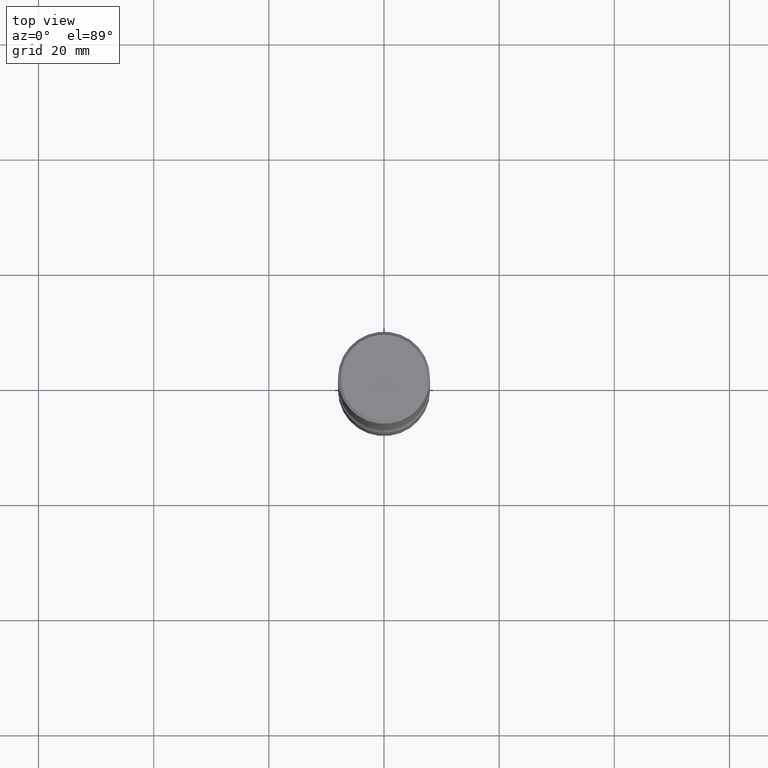
[diagram: clean part render]
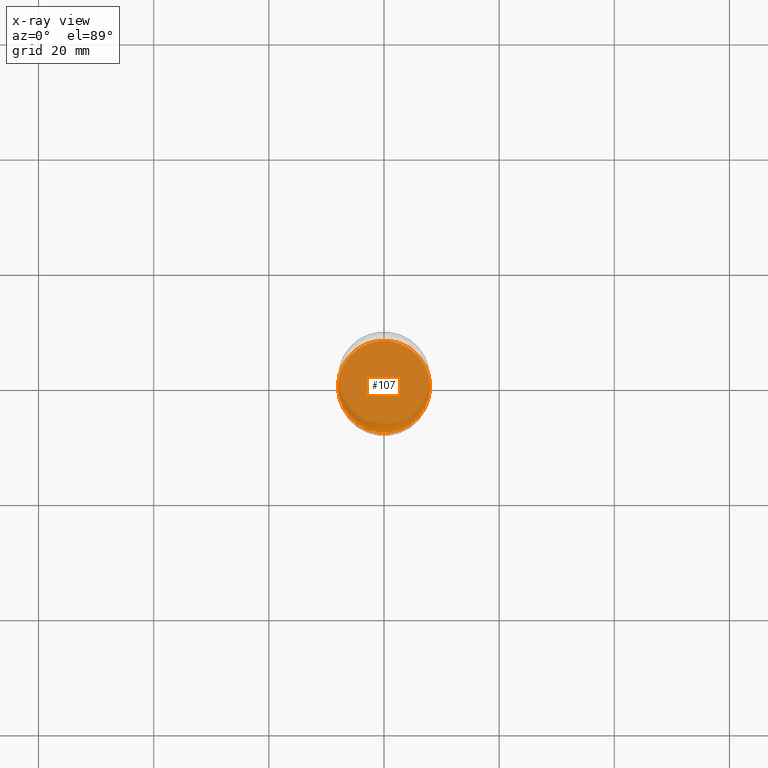
[diagram: x-ray — body ghosted, one internal face saturated and labeled with its STEP entity id]
A machine part, top view, then the same camera in x-ray: the body is ghosted and one INTERNAL B-rep face — a face not visible from any outside direction — is saturated and labeled: STEP entity #107.
In plain terms, the highlighted planar face has unit normal (0, -0, -1).
Its self-contained STEP definition (entity closure, byte-faithful):
#4 = DIRECTION ( 'NONE',  ( 1.000000000000000000, -6.982962677686263555E-15, 0.000000000000000000 ) ) ;
#50 = PLANE ( 'NONE',  #97 ) ;
#57 = VERTEX_POINT ( 'NONE', #185 ) ;
#74 = EDGE_CURVE ( 'NONE', #533, #57, #292, .T. ) ;
#79 = CARTESIAN_POINT ( 'NONE',  ( 8.665029620955796311E-29, -1.237136582792292023E-14, -3.543300000000000782 ) ) ;
#97 = AXIS2_PLACEMENT_3D ( 'NONE', #476, #269, #433 ) ;
#107 = ADVANCED_FACE ( 'NONE', ( #182 ), #50, .F. ) ;
#122 = DIRECTION ( 'NONE',  ( -2.445468806185136597E-29, 3.491481338843145583E-15, 1.000000000000000000 ) ) ;
#163 = CARTESIAN_POINT ( 'NONE',  ( 8.665029620955796311E-29, -1.237136582792292023E-14, -3.543300000000000782 ) ) ;
#176 = DIRECTION ( 'NONE',  ( -2.445468806185136597E-29, 3.491481338843145583E-15, 1.000000000000000000 ) ) ;
#182 = FACE_OUTER_BOUND ( 'NONE', #459, .T. ) ;
#185 = CARTESIAN_POINT ( 'NONE',  ( 0.3149500000000002853, -1.457064992326021168E-14, -3.543300000000000782 ) ) ;
#187 = EDGE_CURVE ( 'NONE', #57, #533, #491, .T. ) ;
#213 = ORIENTED_EDGE ( 'NONE', *, *, #74, .T. ) ;
#220 = AXIS2_PLACEMENT_3D ( 'NONE', #79, #176, #4 ) ;
#225 = CARTESIAN_POINT ( 'NONE',  ( -0.3149500000000002853, -1.240175233342592784E-14, -3.543300000000000782 ) ) ;
#236 = AXIS2_PLACEMENT_3D ( 'NONE', #163, #122, #301 ) ;
#269 = DIRECTION ( 'NONE',  ( 2.438088387897960049E-29, -3.491481338843145188E-15, -1.000000000000000000 ) ) ;
#292 = CIRCLE ( 'NONE', #220, 0.3149500000000002853 ) ;
#301 = DIRECTION ( 'NONE',  ( 1.000000000000000000, -6.982962677686263555E-15, 0.000000000000000000 ) ) ;
#433 = DIRECTION ( 'NONE',  ( -1.000000000000000000, 6.982962677686265922E-15, -4.876176775795935793E-29 ) ) ;
#459 = EDGE_LOOP ( 'NONE', ( #547, #213 ) ) ;
#476 = CARTESIAN_POINT ( 'NONE',  ( 4.372705008681123089E-29, -1.851821897664530113E-14, -3.543300000000000338 ) ) ;
#491 = CIRCLE ( 'NONE', #236, 0.3149500000000002853 ) ;
#533 = VERTEX_POINT ( 'NONE', #225 ) ;
#547 = ORIENTED_EDGE ( 'NONE', *, *, #187, .T. ) ;